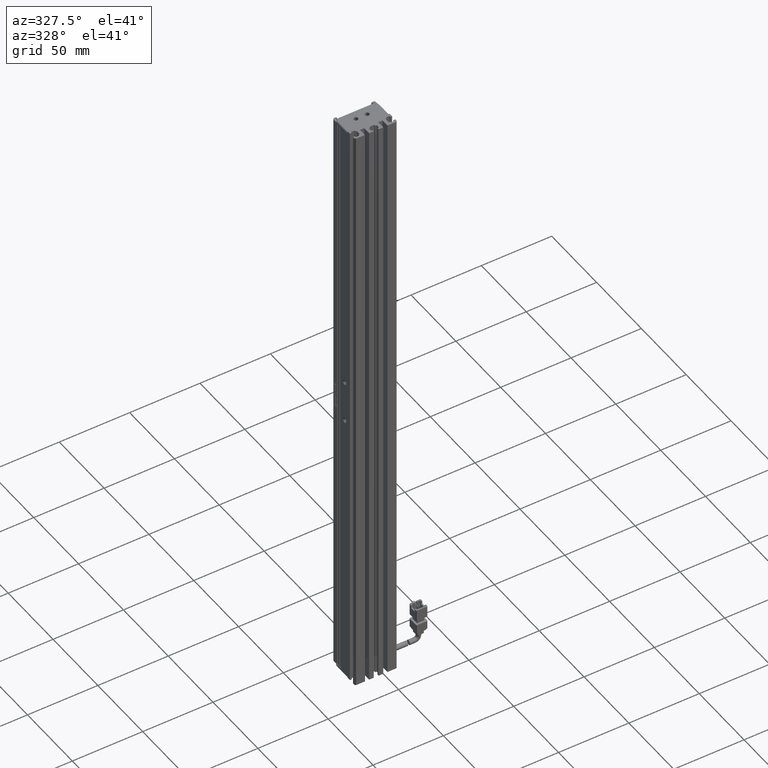
[diagram: clean part render]
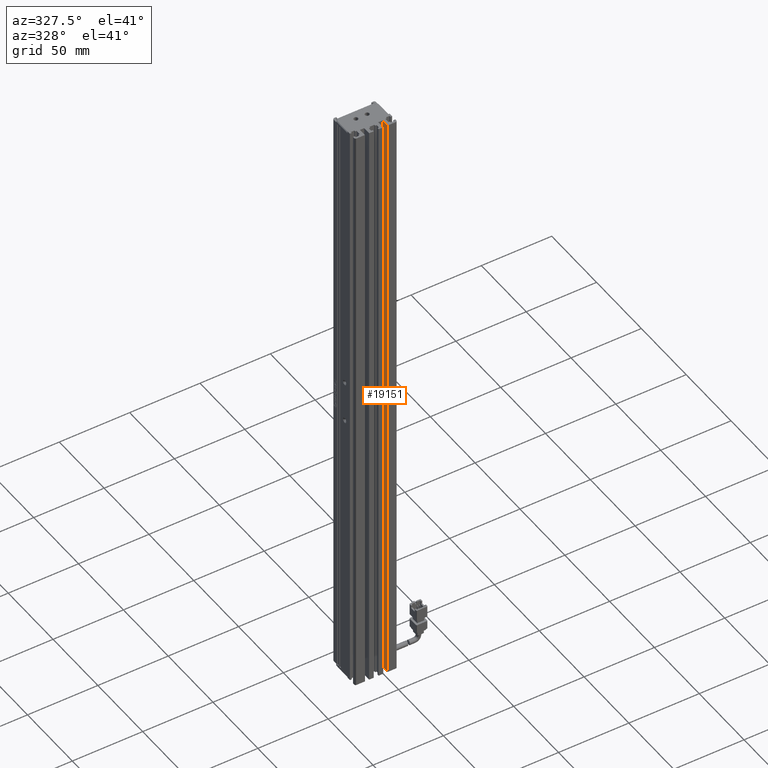
[diagram: same view with one face highlighted and labeled with its STEP entity id]
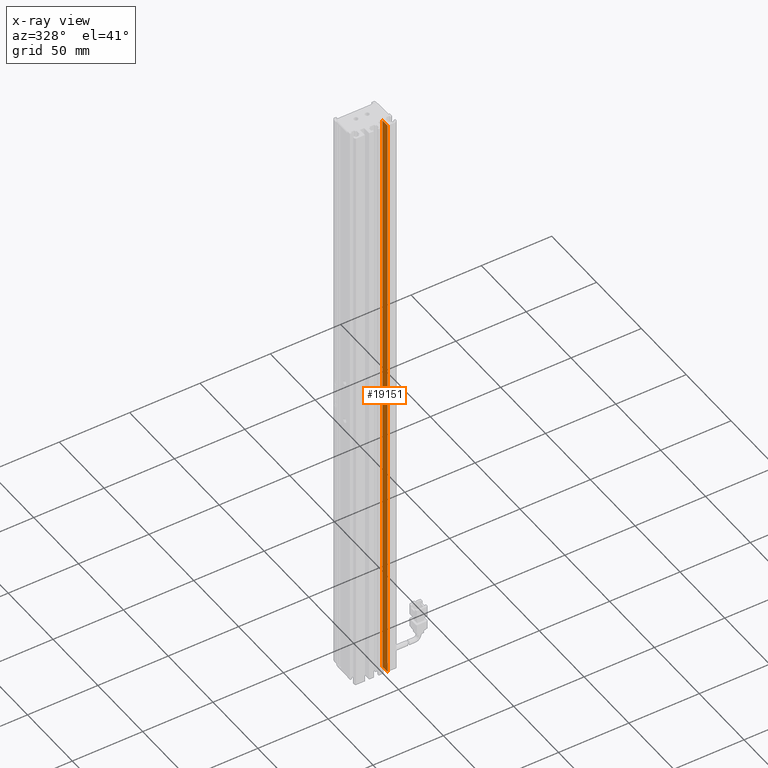
[diagram: x-ray of the same camera — body ghosted, the highlighted face saturated]
A machine part, auxiliary view. The second image highlights one B-rep face of the part: STEP entity #19151.
The next image is the same camera in x-ray: the body ghosted, the highlighted face saturated — about 0% of this face is hidden behind the body in this view.
In plain terms, the highlighted planar face has unit normal (-1, 0, 0).
Its self-contained STEP definition (entity closure, byte-faithful):
#675 = LINE ( 'NONE', #14377, #78502 ) ;
#1758 = CARTESIAN_POINT ( 'NONE',  ( 48.92537974683541800, 10.69594479660387000, -332.0000000000000000 ) ) ;
#7253 = EDGE_CURVE ( 'NONE', #68536, #25446, #69282, .T. ) ;
#10863 = VECTOR ( 'NONE', #33078, 1000.000000000000000 ) ;
#11401 = VERTEX_POINT ( 'NONE', #16025 ) ;
#14377 = CARTESIAN_POINT ( 'NONE',  ( 48.92537974683541800, 7.083797468354437600, -332.0000000000000000 ) ) ;
#14755 = CARTESIAN_POINT ( 'NONE',  ( 48.92537974683541800, 10.69594479660387000, 102.0000000000000000 ) ) ;
#16025 = CARTESIAN_POINT ( 'NONE',  ( 48.92537974683541800, 16.19594479660386800, -332.0000000000000000 ) ) ;
#16107 = CARTESIAN_POINT ( 'NONE',  ( 48.92537974683541800, 7.083797468354437600, 102.0000000000000000 ) ) ;
#17645 = ORIENTED_EDGE ( 'NONE', *, *, #41052, .T. ) ;
#17652 = CARTESIAN_POINT ( 'NONE',  ( 48.92537974683541800, 10.69594479660387000, 102.0000000000000000 ) ) ;
#19151 = ADVANCED_FACE ( 'NONE', ( #77311 ), #41842, .T. ) ;
#22313 = VECTOR ( 'NONE', #58993, 1000.000000000000000 ) ;
#25375 = VECTOR ( 'NONE', #52308, 1000.000000000000000 ) ;
#25446 = VERTEX_POINT ( 'NONE', #17652 ) ;
#26310 = VERTEX_POINT ( 'NONE', #1758 ) ;
#33078 = DIRECTION ( 'NONE',  ( 0.0000000000000000000, 0.0000000000000000000, 1.000000000000000000 ) ) ;
#35446 = CARTESIAN_POINT ( 'NONE',  ( 48.92537974683541800, 16.19594479660386800, 102.0000000000000000 ) ) ;
#35956 = CARTESIAN_POINT ( 'NONE',  ( 48.92537974683541800, 7.083797468354437600, 102.0000000000000000 ) ) ;
#39793 = LINE ( 'NONE', #46204, #25375 ) ;
#40119 = EDGE_LOOP ( 'NONE', ( #45755, #43249, #17645, #64996 ) ) ;
#41052 = EDGE_CURVE ( 'NONE', #11401, #26310, #675, .T. ) ;
#41842 = PLANE ( 'NONE',  #51666 ) ;
#42116 = DIRECTION ( 'NONE',  ( 0.0000000000000000000, 0.0000000000000000000, 1.000000000000000000 ) ) ;
#43249 = ORIENTED_EDGE ( 'NONE', *, *, #65488, .T. ) ;
#44485 = DIRECTION ( 'NONE',  ( -0.0000000000000000000, -1.000000000000000000, 0.0000000000000000000 ) ) ;
#45755 = ORIENTED_EDGE ( 'NONE', *, *, #7253, .F. ) ;
#46204 = CARTESIAN_POINT ( 'NONE',  ( 48.92537974683541800, 16.19594479660386800, 102.0000000000000000 ) ) ;
#51666 = AXIS2_PLACEMENT_3D ( 'NONE', #35956, #78683, #42116 ) ;
#52308 = DIRECTION ( 'NONE',  ( -0.0000000000000000000, -0.0000000000000000000, -1.000000000000000000 ) ) ;
#54793 = LINE ( 'NONE', #14755, #10863 ) ;
#57044 = EDGE_CURVE ( 'NONE', #26310, #25446, #54793, .T. ) ;
#58993 = DIRECTION ( 'NONE',  ( -0.0000000000000000000, -1.000000000000000000, 0.0000000000000000000 ) ) ;
#64996 = ORIENTED_EDGE ( 'NONE', *, *, #57044, .T. ) ;
#65488 = EDGE_CURVE ( 'NONE', #68536, #11401, #39793, .T. ) ;
#68536 = VERTEX_POINT ( 'NONE', #35446 ) ;
#69282 = LINE ( 'NONE', #16107, #22313 ) ;
#77311 = FACE_OUTER_BOUND ( 'NONE', #40119, .T. ) ;
#78502 = VECTOR ( 'NONE', #44485, 1000.000000000000000 ) ;
#78683 = DIRECTION ( 'NONE',  ( -1.000000000000000000, 0.0000000000000000000, 0.0000000000000000000 ) ) ;